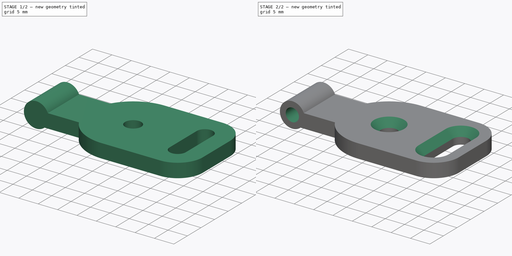
[diagram: build sequence overview — one tinted view per stage of 2, left to right]
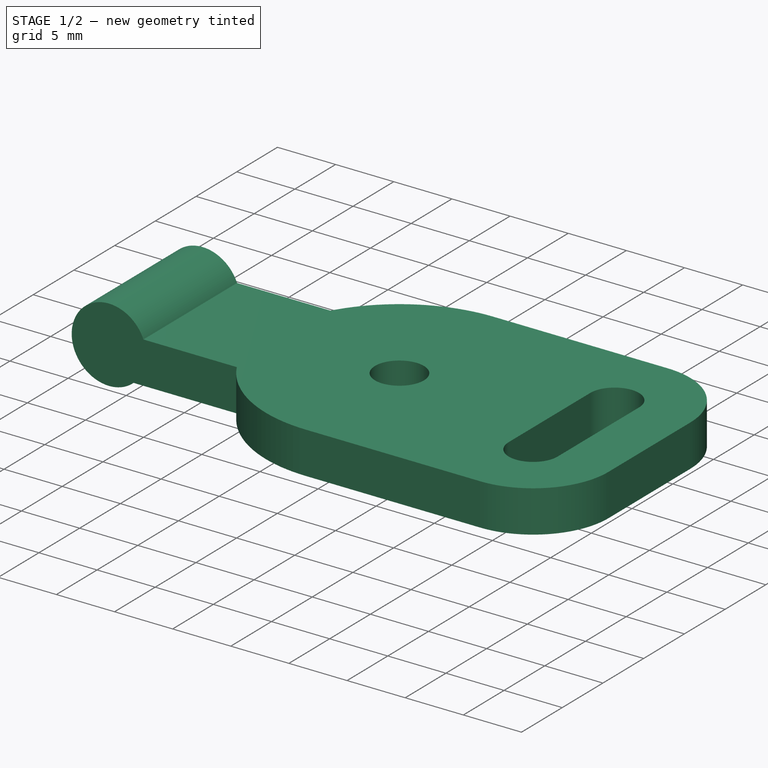
[diagram: stage 1 of 2 — iso view after this stage's code; geometry added in this stage tinted green]
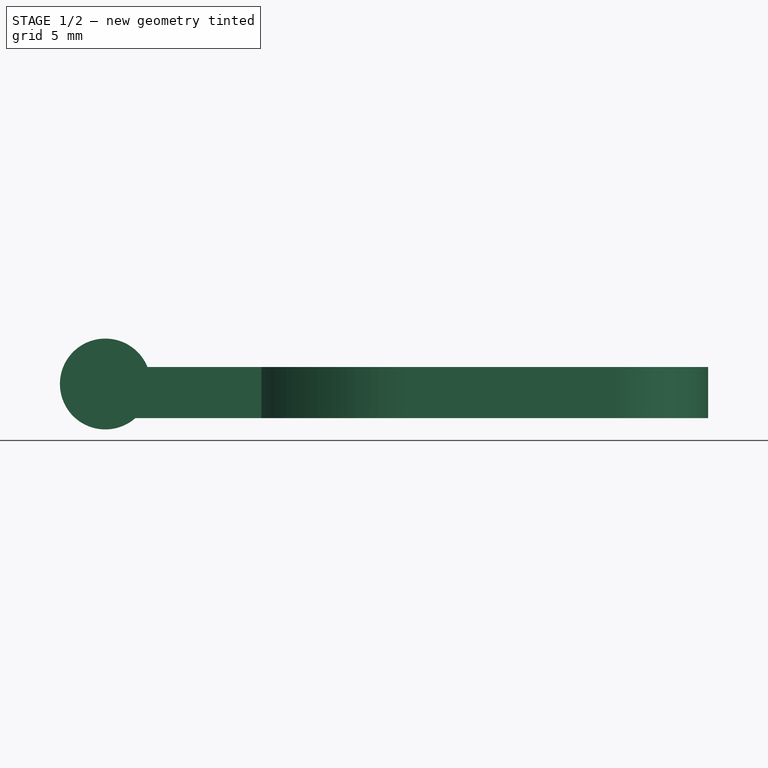
[diagram: stage 1 of 2 — front view after this stage's code; geometry added in this stage tinted green]
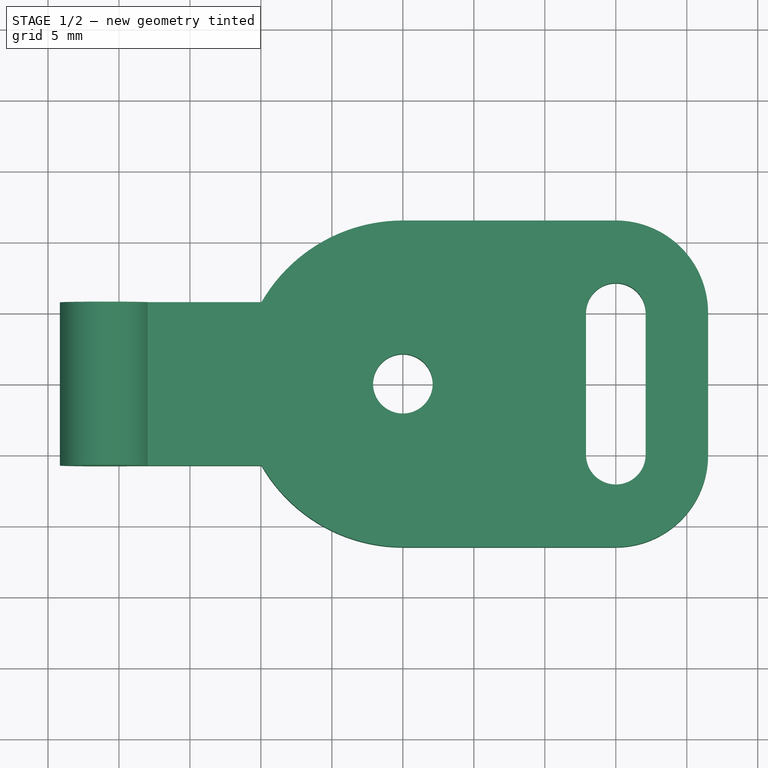
[diagram: stage 1 of 2 — top view after this stage's code; geometry added in this stage tinted green]
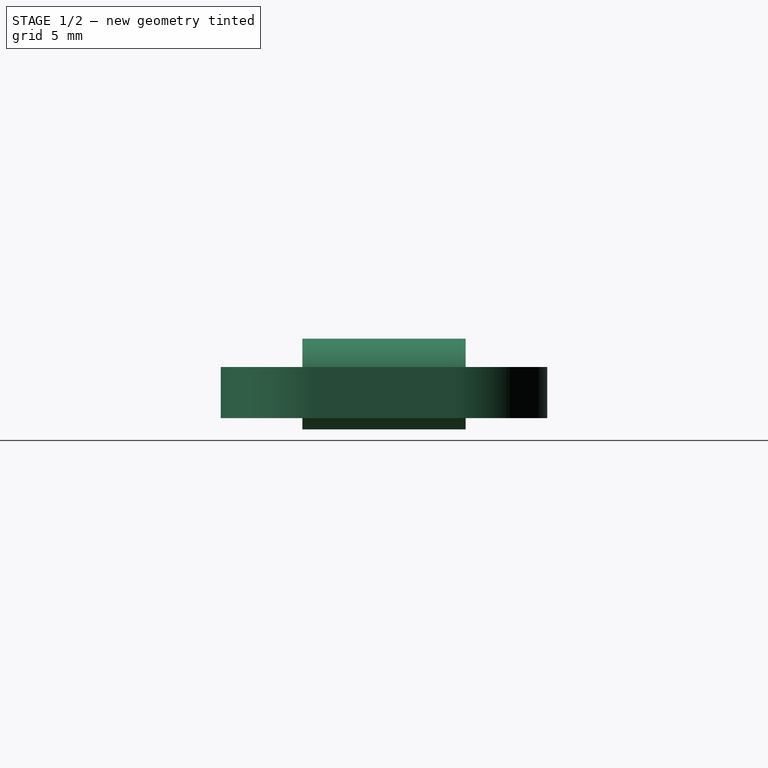
[diagram: stage 1 of 2 — right view after this stage's code; geometry added in this stage tinted green]
FCSTD DOCUMENT  (FreeCAD 0.16R)
Label: hinge
License: All rights reserved
LicenseURL: http://en.wikipedia.org/wiki/All_rights_reserved
objects: Sketcher::SketchObject×3, PartDesign::Pad×2, PartDesign::Pocket×1, PartDesign::Chamfer×1
note: 10 computed .brp shape members not serialized (recipe doc carries the construction recipe); baked Part::Feature solids carry a one-line shape summary decoded from their .brp

FEATURE [Sketcher::SketchObject] Sketch
  sketch-geometry (19):
    g0: LineSegment StartX=-20.9593 StartY=5.75 StartZ=0 EndX=-9.95929 EndY=5.75 EndZ=0
    g1: LineSegment StartX=-9.95929 StartY=-5.75 StartZ=0 EndX=-20.9593 EndY=-5.75 EndZ=0
    g2: LineSegment StartX=-20.9593 StartY=-5.75 StartZ=0 EndX=-20.9593 EndY=5.75 EndZ=0
    g3: LineSegment StartX=0 StartY=11.5 StartZ=0 EndX=15 EndY=11.5 EndZ=0
    g4: LineSegment [constr] StartX=15 StartY=11.5 StartZ=0 EndX=15 EndY=-11.5 EndZ=0
    g5: LineSegment StartX=15 StartY=-11.5 StartZ=0 EndX=0 EndY=-11.5 EndZ=0
    g6: LineSegment [constr] StartX=0 StartY=-11.5 StartZ=0 EndX=0 EndY=11.5 EndZ=0
    g7: ArcOfCircle CenterX=0 CenterY=0 CenterZ=0 NormalX=0 NormalY=0 NormalZ=1 Radius=11.5 StartAngle=1.5708 EndAngle=2.61799
    g8: ArcOfCircle CenterX=0 CenterY=0 CenterZ=0 NormalX=0 NormalY=0 NormalZ=1 Radius=11.5 StartAngle=3.66519 EndAngle=4.71239
    g9: ArcOfCircle CenterX=15 CenterY=5 CenterZ=0 NormalX=0 NormalY=0 NormalZ=1 Radius=6.5 StartAngle=0 EndAngle=1.5708
    g10: ArcOfCircle CenterX=15 CenterY=-5 CenterZ=0 NormalX=0 NormalY=0 NormalZ=1 Radius=6.5 StartAngle=4.71239 EndAngle=6.28319
    g11: LineSegment StartX=21.5 StartY=5 StartZ=0 EndX=21.5 EndY=-5 EndZ=0
    g12: Circle CenterX=0 CenterY=0 CenterZ=0 NormalX=0 NormalY=0 NormalZ=1 Radius=2.1
    g13: LineSegment [constr] StartX=12.9 StartY=5 StartZ=0 EndX=17.1 EndY=5 EndZ=0
    g14: LineSegment StartX=17.1 StartY=5 StartZ=0 EndX=17.1 EndY=-5 EndZ=0
    g15: LineSegment [constr] StartX=17.1 StartY=-5 StartZ=0 EndX=12.9 EndY=-5 EndZ=0
    g16: LineSegment StartX=12.9 StartY=-5 StartZ=0 EndX=12.9 EndY=5 EndZ=0
    g17: ArcOfCircle CenterX=15 CenterY=5 CenterZ=0 NormalX=0 NormalY=0 NormalZ=1 Radius=2.1 StartAngle=0 EndAngle=3.14159
    g18: ArcOfCircle CenterX=15 CenterY=-5 CenterZ=0 NormalX=0 NormalY=0 NormalZ=1 Radius=2.1 StartAngle=3.14159 EndAngle=6.28319
  constraints (56):
    c: Coincident(g1,g2)
    c: Coincident(g2,g0)
    c: Horizontal(g0)
    c: Horizontal(g1)
    c: Vertical(g2)
    c: DistanceX(g0,g0) = 11
    c: DistanceY(g2,g2) = 11.5
    c: Symmetric(g0,g1,g-1)
    c: Equal(g0,g1)
    c: Coincident(g3,g4)
    c: Coincident(g4,g5)
    c: Coincident(g5,g6)
    c: Coincident(g6,g3)
    c: Horizontal(g3)
    c: Horizontal(g5)
    c: Vertical(g4)
    c: Vertical(g6)
    c: DistanceY(g6,g6) = 23
    c: Symmetric(g3,g5,g-1)
    c: PointOnObject(g-1,g6)
    c: Coincident(g7,g-1)
    c: Coincident(g7,g3)
    c: Coincident(g8,g-1)
    c: Coincident(g8,g5)
    c: Coincident(g0,g7)
    c: Coincident(g1,g8)
    c: DistanceX(g3,g3) = 15
    c: PointOnObject(g9,g4)
    c: Radius(g9) = 6.5
    c: Coincident(g3,g9)
    c: Angle(g9) = 1.5708
    c: PointOnObject(g10,g4)
    c: Coincident(g10,g4)
    c: Radius(g10) = 6.5
    c: Coincident(g11,g9)
    c: Coincident(g11,g10)
    c: Vertical(g11)
    c: Coincident(g12,g-1)
    c: Radius(g12) = 2.1
    c: Coincident(g13,g14)
    c: Coincident(g14,g15)
    c: Coincident(g15,g16)
    c: Coincident(g16,g13)
    c: Horizontal(g13)
    c: Horizontal(g15)
    c: Vertical(g14)
    c: Vertical(g16)
    c: PointOnObject(g9,g13)
    c: PointOnObject(g10,g15)
    c: Coincident(g17,g9)
    c: Coincident(g17,g13)
    c: Coincident(g17,g13)
    c: Coincident(g18,g10)
    c: Coincident(g18,g15)
    c: Coincident(g18,g14)
    c: Radius(g17) = 2.1
FEATURE [PartDesign::Pad] Pad
  Length = 3.6
  Length2 = 100
  Sketch = -> Sketch
  Type = 0
FEATURE [Sketcher::SketchObject] Sketch001
  ExternalGeometry = -> [Pad]
  Placement = pos=(0,-5.75,0) rot=(1,0,0;1.5708rad)
  Support = -> Pad [Face1]
  sketch-geometry (2):
    g0: Circle CenterX=-20.9593 CenterY=2.4 CenterZ=0 NormalX=0 NormalY=0 NormalZ=1 Radius=3.2
    g1: LineSegment [constr] StartX=-20.9593 StartY=0 StartZ=0 EndX=-20.9593 EndY=-0.8 EndZ=0
  constraints (6):
    c: PointOnObject(g0,g-3)
    c: Radius(g0) = 3.2
    c: Coincident(g1,g-3)
    c: Vertical(g1)
    c: DistanceY(g1,g1) = 0.8
    c: PointOnObject(g1,g0)
FEATURE [PartDesign::Pad] Pad001
  Length = 11.5
  Length2 = 100
  Reversed = true
  Sketch = -> Sketch001
  Type = 0
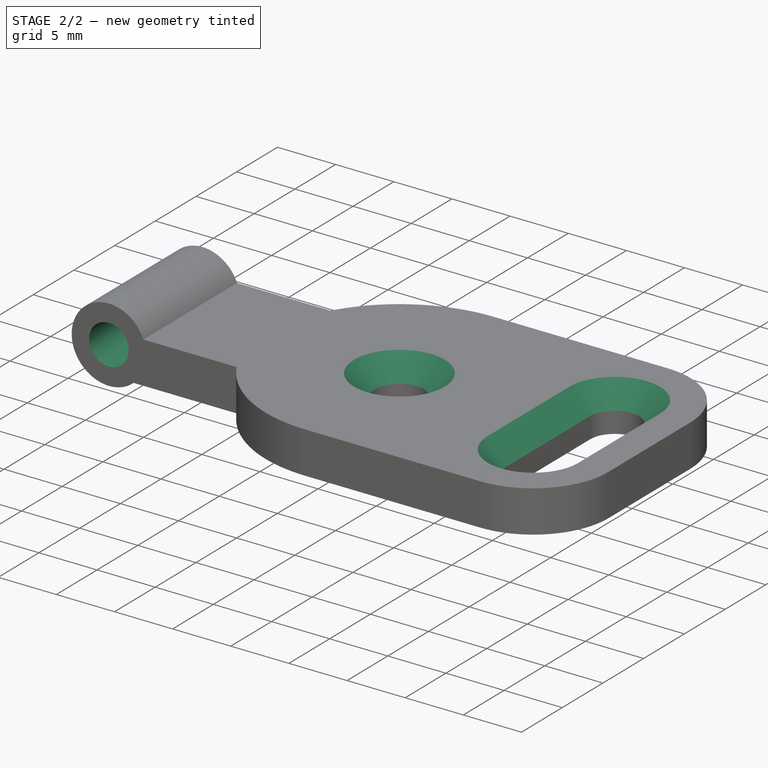
[diagram: stage 2 of 2 — iso view after this stage's code; geometry added in this stage tinted green]
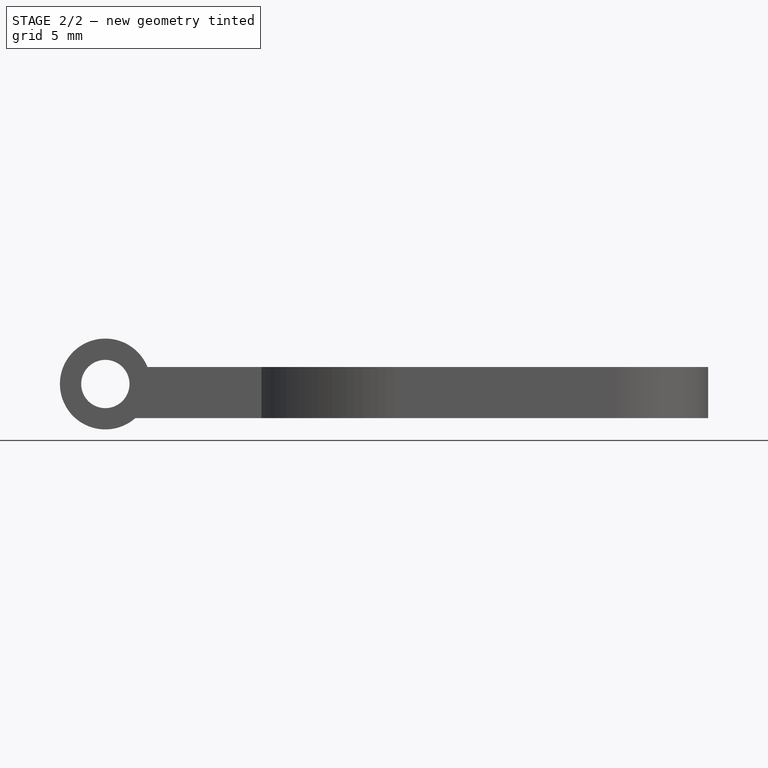
[diagram: stage 2 of 2 — front view after this stage's code; geometry added in this stage tinted green]
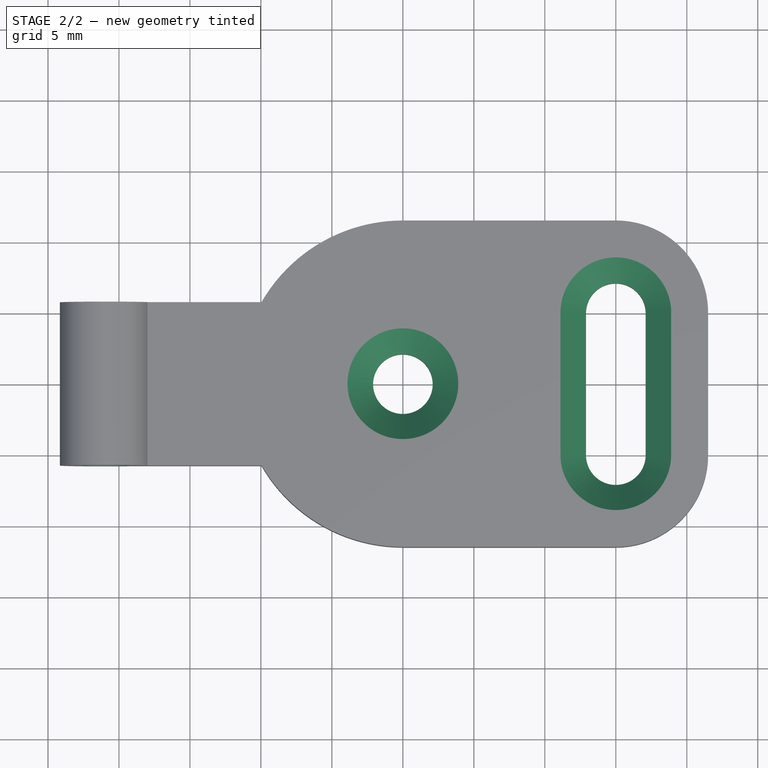
[diagram: stage 2 of 2 — top view after this stage's code; geometry added in this stage tinted green]
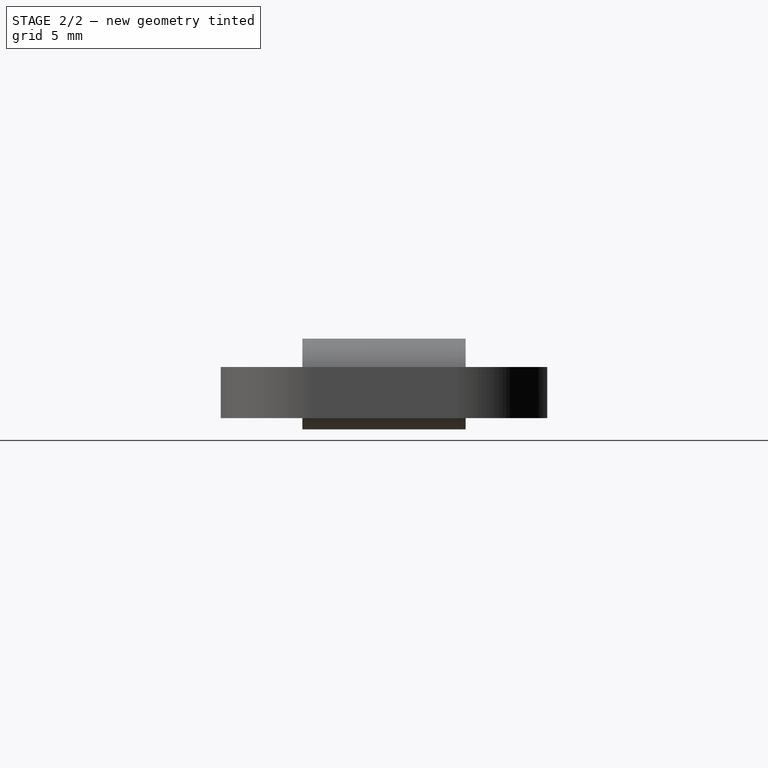
[diagram: stage 2 of 2 — right view after this stage's code; geometry added in this stage tinted green]
FEATURE [Sketcher::SketchObject] Sketch002
  ExternalGeometry = -> [Pad001]
  Placement = pos=(0,-5.75,0) rot=(1,0,0;1.5708rad)
  Support = -> Pad001 [Face19]
  sketch-geometry (1):
    g0: Circle CenterX=-20.9593 CenterY=2.4 CenterZ=0 NormalX=0 NormalY=0 NormalZ=1 Radius=1.7
  constraints (2):
    c: Coincident(g0,g-3)
    c: Radius(g0) = 1.7
FEATURE [PartDesign::Pocket] Pocket
  Length = 5
  Sketch = -> Sketch002
  Type = 1
FEATURE [PartDesign::Chamfer] Chamfer
  Base = -> Pocket [Edge31,Edge34,Edge32,Edge35,Edge33]
  Size = 1.8
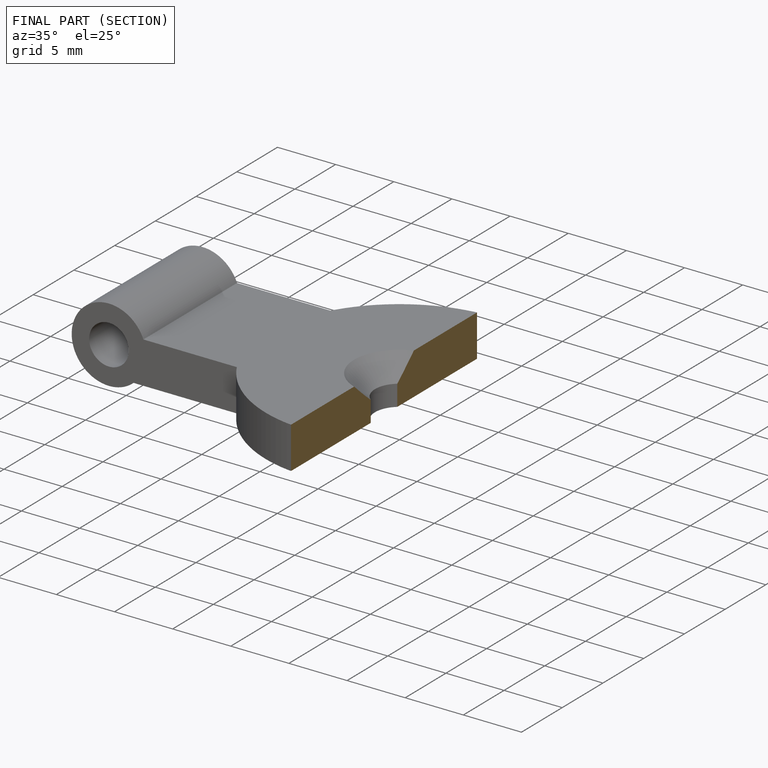
[diagram: finished part — half-section view (interior)]
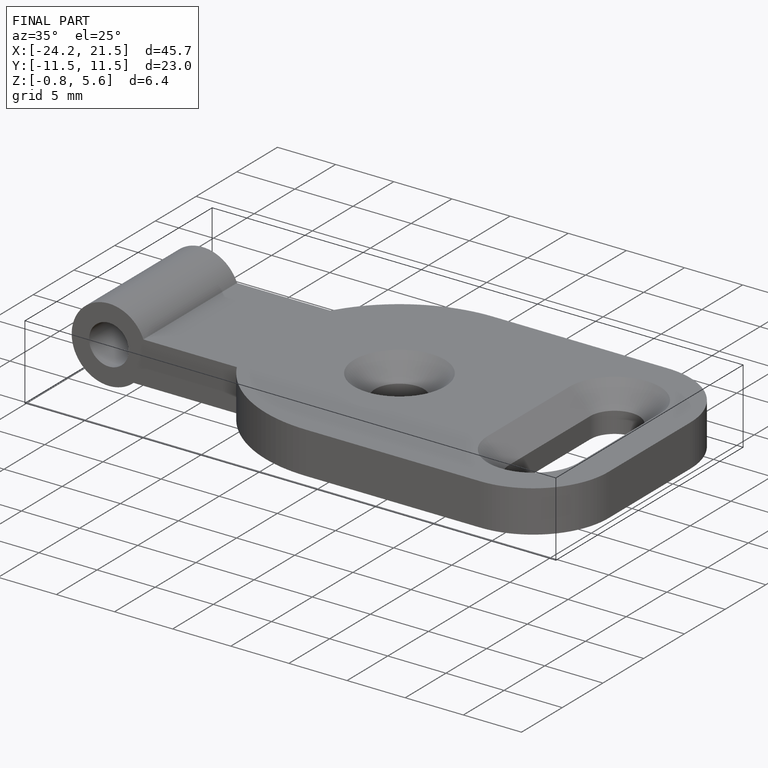
[diagram: finished part — iso view with bounding-box wireframe]
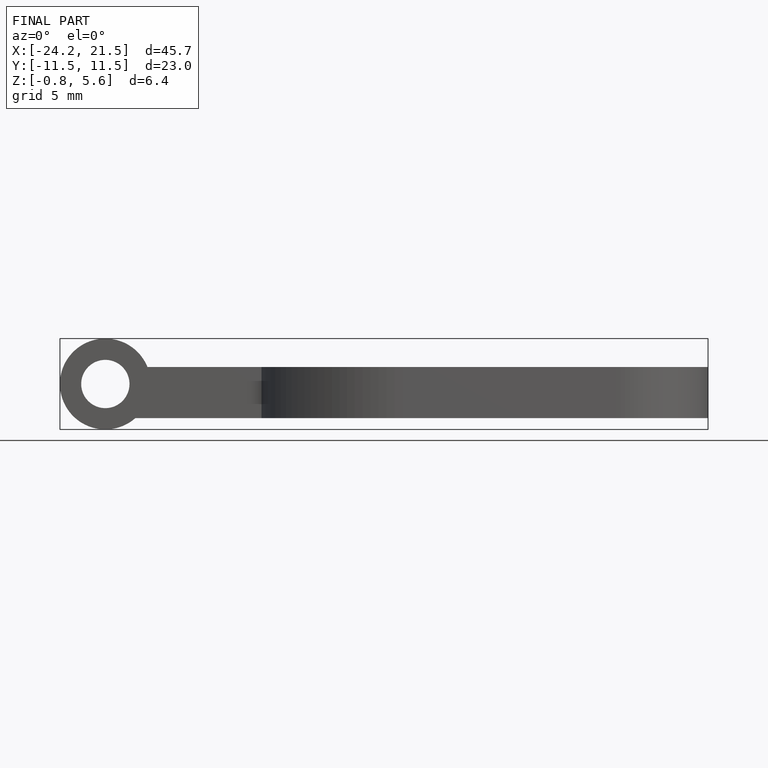
[diagram: finished part — front view with bounding-box wireframe]
